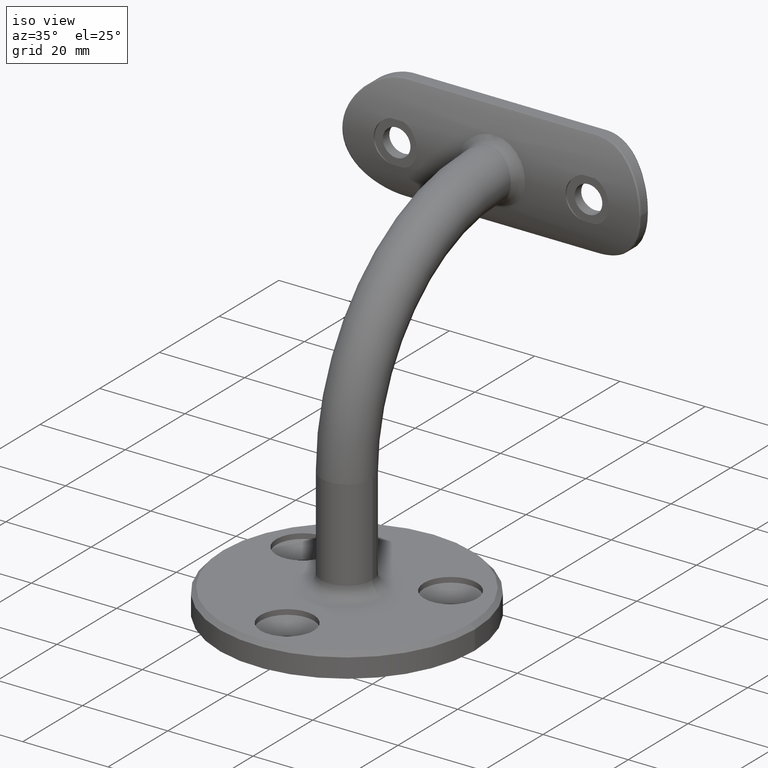
[diagram: clean part render]
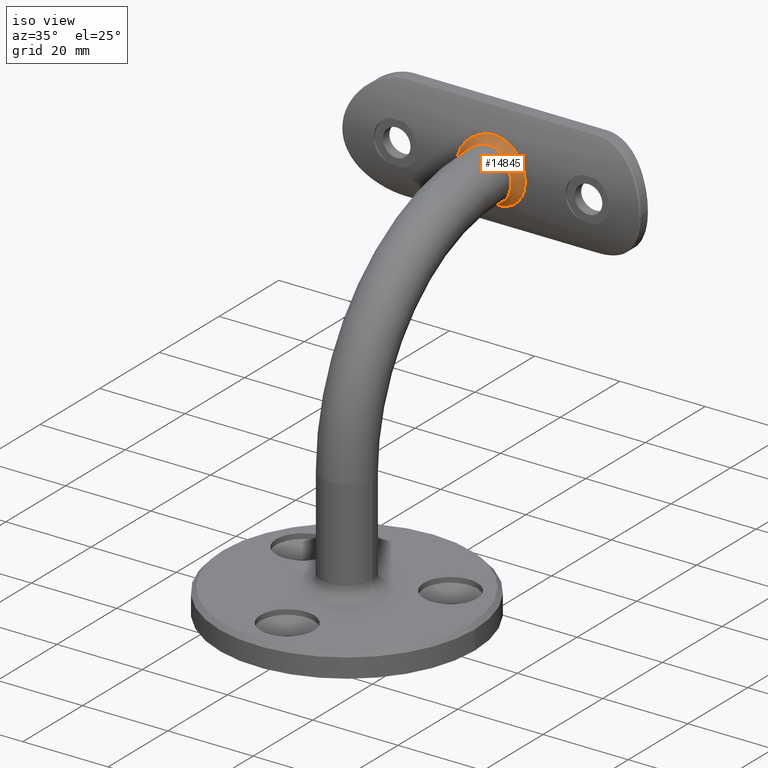
[diagram: same view with one face highlighted and labeled with its STEP entity id]
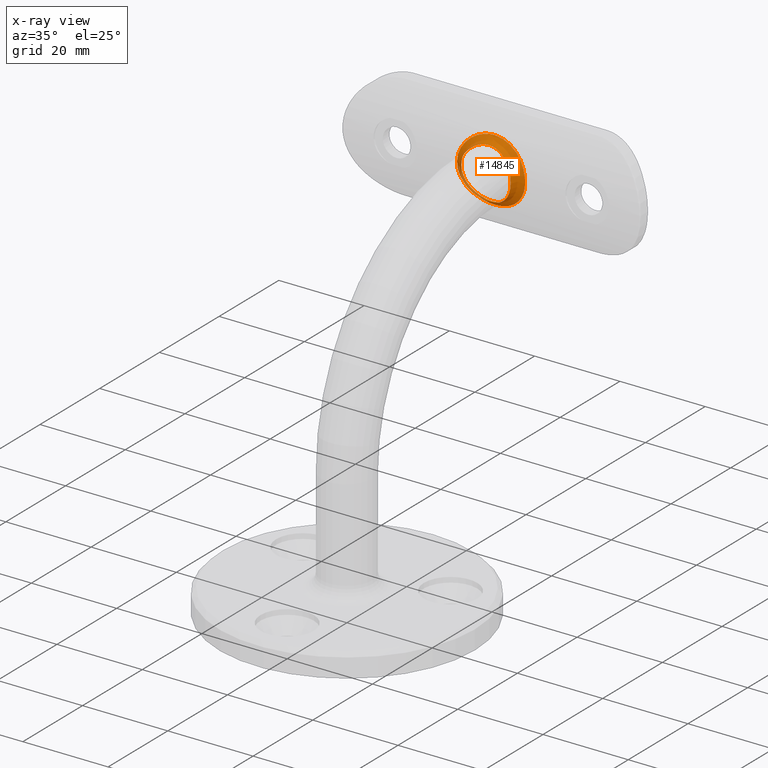
[diagram: x-ray of the same camera — body ghosted, the highlighted face saturated]
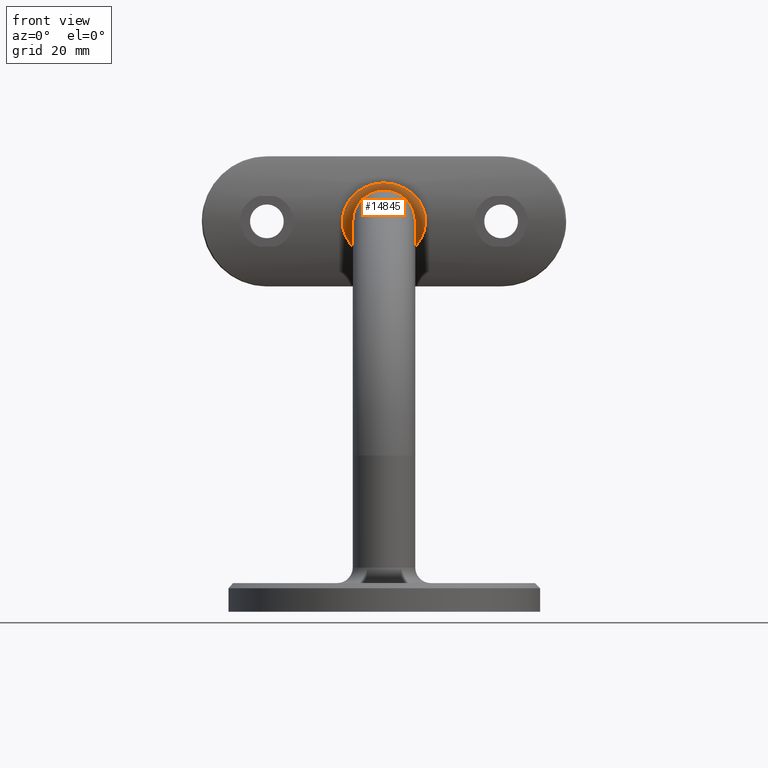
[diagram: same view with one face highlighted and labeled with its STEP entity id]
A machine part, iso view. The second image highlights one B-rep face of the part: STEP entity #14845.
The next image is the same camera in x-ray: the body ghosted, the highlighted face saturated — about 7% of this face is hidden behind the body in this view.
A second angle (front view) of the same face is appended — the face is thin or edge-on in the first view.
In plain terms, the highlighted face is a freeform B-spline surface patch.
Its self-contained STEP definition (entity closure, byte-faithful):
#22 = CARTESIAN_POINT ( 'NONE',  ( -2.789063963809405688, 48.86066968553032552, 80.33243708874761069 ) ) ;
#82 = CARTESIAN_POINT ( 'NONE',  ( -3.448318950580279818, 47.14200540014157070, 79.91400558096930240 ) ) ;
#92 = CARTESIAN_POINT ( 'NONE',  ( 1.573708688834506653, 47.48266723306192461, 69.19655900937227955 ) ) ;
#127 = CARTESIAN_POINT ( 'NONE',  ( -1.404986051376377443, 48.97931432727733636, 80.83787863610950808 ) ) ;
#183 = CARTESIAN_POINT ( 'NONE',  ( -6.003238947851689211, 48.29928980566356955, 74.70707263832788669 ) ) ;
#197 = CARTESIAN_POINT ( 'NONE',  ( 5.689857243214267335, 46.42545414445829977, 73.05563850057957609 ) ) ;
#248 = CARTESIAN_POINT ( 'NONE',  ( -5.857608621810721949, 48.33113033442135276, 73.64522517141972457 ) ) ;
#264 = CARTESIAN_POINT ( 'NONE',  ( 3.661040483986010674, 47.09106678673158086, 79.76945707445469225 ) ) ;
#279 = CARTESIAN_POINT ( 'NONE',  ( 2.492586276368585541, 49.35371306450804951, 82.01868474809954535 ) ) ;
#309 = CARTESIAN_POINT ( 'NONE',  ( -5.659733139078728215, 46.43663374126335697, 77.00158111292725494 ) ) ;
#321 = CARTESIAN_POINT ( 'NONE',  ( 5.794227871222095594, 46.38353155175246201, 76.57030669595384609 ) ) ;
#333 = CARTESIAN_POINT ( 'NONE',  ( -3.893706558449051336, 49.18741166671816956, 68.54682432360860389 ) ) ;
#363 = CARTESIAN_POINT ( 'NONE',  ( -7.546310852404073621, 48.42608287344708629, 77.46269181983331009 ) ) ;
#380 = CARTESIAN_POINT ( 'NONE',  ( 5.191637306238613192, 46.61265038448122056, 71.98581450110339119 ) ) ;
#398 = CARTESIAN_POINT ( 'NONE',  ( 6.413550028340067932, 48.71126197688390391, 70.58071852198609974 ) ) ;
#428 = CARTESIAN_POINT ( 'NONE',  ( -6.552055246393842403, 48.67869303060527386, 70.75741222886871640 ) ) ;
#444 = CARTESIAN_POINT ( 'NONE',  ( 5.678527901045227644, 46.42927580838397716, 76.94762948736543251 ) ) ;
#464 = CARTESIAN_POINT ( 'NONE',  ( 7.235541675167675990, 48.50857720736153311, 78.15891535792472666 ) ) ;
#491 = CARTESIAN_POINT ( 'NONE',  ( 0.3294071263464187216, 47.56397769533015918, 69.00576837163465882 ) ) ;
#518 = CARTESIAN_POINT ( 'NONE',  ( 6.253408285771337560, 48.74817167552411235, 70.38948027749694347 ) ) ;
#541 = CARTESIAN_POINT ( 'NONE',  ( 2.955320434104263150, 47.25438023384255359, 69.77458862647021931 ) ) ;
#600 = CARTESIAN_POINT ( 'NONE',  ( -1.399630106084424064, 49.43326560871042830, 67.72754479334609812 ) ) ;
#629 = CARTESIAN_POINT ( 'NONE',  ( -7.541892706895292342, 48.42728422773119235, 77.47500010425014239 ) ) ;
#657 = CARTESIAN_POINT ( 'NONE',  ( 3.143215169841599987, 48.81498524573601827, 69.88045222800882073 ) ) ;
#692 = CARTESIAN_POINT ( 'NONE',  ( -5.360454491231661400, 48.93731701300155379, 80.48510922264213718 ) ) ;
#757 = CARTESIAN_POINT ( 'NONE',  ( 5.829840767859813866, 48.33717207144672301, 73.52905550108560817 ) ) ;
#810 = CARTESIAN_POINT ( 'NONE',  ( 5.733425775026952387, 48.35818101421077841, 73.18273381067155015 ) ) ;
#875 = CARTESIAN_POINT ( 'NONE',  ( 6.003038123793205116, 48.29933383852904427, 75.29714061239542389 ) ) ;
#930 = CARTESIAN_POINT ( 'NONE',  ( 5.578655151910920651, 48.39113110858912847, 77.22695894641321956 ) ) ;
#986 = CARTESIAN_POINT ( 'NONE',  ( 7.250718796813253597, 48.50461604002735072, 71.87123069069495784 ) ) ;
#1032 = CARTESIAN_POINT ( 'NONE',  ( -5.202203636006318632, 46.61010619932397248, 78.01515954375678064 ) ) ;
#1103 = CARTESIAN_POINT ( 'NONE',  ( -3.662831439949787438, 47.08779718372629475, 79.75621412619868522 ) ) ;
#1120 = CARTESIAN_POINT ( 'NONE',  ( 2.662647846380269190, 49.33744256521493554, 81.96558183420624744 ) ) ;
#1169 = CARTESIAN_POINT ( 'NONE',  ( 1.430828265523909737, 47.49404040511088709, 80.83019572179071588 ) ) ;
#1209 = CARTESIAN_POINT ( 'NONE',  ( 2.004891491025046157, 49.39462564044466575, 82.15050086725196365 ) ) ;
#1249 = CARTESIAN_POINT ( 'NONE',  ( -1.876617077243558418, 47.44101670052194919, 80.70240605927043021 ) ) ;
#1310 = CARTESIAN_POINT ( 'NONE',  ( -4.111392016248186287, 48.67145551136837156, 79.38234749384658073 ) ) ;
#1355 = CARTESIAN_POINT ( 'NONE',  ( -3.481154755467136930, 49.24714102011982675, 81.66422870511182452 ) ) ;
#1366 = CARTESIAN_POINT ( 'NONE',  ( -5.804623190053309401, 46.37946402623100539, 73.43099308841665618 ) ) ;
#1404 = CARTESIAN_POINT ( 'NONE',  ( -5.303351652216448109, 48.44919879917863881, 77.84430998513131783 ) ) ;
#1465 = CARTESIAN_POINT ( 'NONE',  ( -2.064478623677075131, 47.41434072976910130, 80.63706554896462819 ) ) ;
#1524 = CARTESIAN_POINT ( 'NONE',  ( -5.712612906942758251, 46.41647392353475254, 73.12313780595761159 ) ) ;
#1534 = CARTESIAN_POINT ( 'NONE',  ( 5.960872738792049041, 46.31625785074412249, 75.79133236480900848 ) ) ;
#1575 = CARTESIAN_POINT ( 'NONE',  ( -4.212015781605938258, 48.65532334590222519, 70.70088932058044406 ) ) ;
#1603 = CARTESIAN_POINT ( 'NONE',  ( 5.920137178970811931, 48.82387823663273707, 79.98830292255588859 ) ) ;
#1629 = CARTESIAN_POINT ( 'NONE',  ( -7.993539213735209259, 48.30184140623610034, 75.56868241045111745 ) ) ;
#1644 = CARTESIAN_POINT ( 'NONE',  ( 1.562862168693655018, 47.47977466978149153, 80.79623961626911921 ) ) ;
#1664 = CARTESIAN_POINT ( 'NONE',  ( 7.234816057347424056, 48.50876908091706241, 71.83950283912820112 ) ) ;
#1694 = CARTESIAN_POINT ( 'NONE',  ( -7.147251892828003328, 48.53191752073604448, 78.35109416969065421 ) ) ;
#1724 = CARTESIAN_POINT ( 'NONE',  ( 0.5049037058908990572, 49.46511407879488331, 67.62873802963035530 ) ) ;
#1748 = CARTESIAN_POINT ( 'NONE',  ( -4.554014696410833452, 46.82965772627687784, 71.08856614944032515 ) ) ;
#1761 = CARTESIAN_POINT ( 'NONE',  ( 5.191249322299214874, 46.61279035302121798, 78.01485094786625041 ) ) ;
#1775 = CARTESIAN_POINT ( 'NONE',  ( -1.264326314952863184, 49.43993506437081464, 67.70674083970688173 ) ) ;
#1804 = CARTESIAN_POINT ( 'NONE',  ( 0.9226678455739397711, 47.53713761406542915, 69.06808014584007083 ) ) ;
#1839 = CARTESIAN_POINT ( 'NONE',  ( -7.887375458517925431, 48.33194620819256215, 73.74045058441721778 ) ) ;
#1862 = CARTESIAN_POINT ( 'NONE',  ( 3.316568499091529176, 48.79184402733476134, 69.99083395567588184 ) ) ;
#1893 = CARTESIAN_POINT ( 'NONE',  ( 8.000029726563285593, 48.29999152708084154, 74.49567259410061126 ) ) ;
#1920 = CARTESIAN_POINT ( 'NONE',  ( 1.230223794047520025, 49.44160575208374553, 67.70152460700533936 ) ) ;
#1951 = CARTESIAN_POINT ( 'NONE',  ( -1.014455774548104428, 49.45402033559916788, 82.33750426053407523 ) ) ;
#2076 = CARTESIAN_POINT ( 'NONE',  ( 7.602137574895356131, 48.41092874955641889, 77.31186669423418323 ) ) ;
#2132 = CARTESIAN_POINT ( 'NONE',  ( 4.803719037192573538, 46.74893532457124223, 78.61646155412778114 ) ) ;
#2181 = CARTESIAN_POINT ( 'NONE',  ( 5.976257403470110141, 48.30522469195089741, 75.64686929168232155 ) ) ;
#2216 = CARTESIAN_POINT ( 'NONE',  ( 4.662849707761884233, 48.57527363195731596, 71.19294125810870355 ) ) ;
#2238 = CARTESIAN_POINT ( 'NONE',  ( 6.882467184949494943, 48.59840550607278686, 71.22900626875930641 ) ) ;
#2301 = CARTESIAN_POINT ( 'NONE',  ( 8.005099778520300191, 48.29854649389471888, 75.40742894134464791 ) ) ;
#2347 = CARTESIAN_POINT ( 'NONE',  ( -5.678965903280795757, 46.42910466290889815, 76.94641473394474929 ) ) ;
#2464 = CARTESIAN_POINT ( 'NONE',  ( 3.447631423960157981, 49.25125766218085488, 81.67822738532588289 ) ) ;
#2577 = CARTESIAN_POINT ( 'NONE',  ( -5.689768486316610030, 46.42550116982381070, 73.05482450017802876 ) ) ;
#2583 = CARTESIAN_POINT ( 'NONE',  ( 5.358390393309221622, 48.93772702701404143, 80.48686748664709967 ) ) ;
#2613 = CARTESIAN_POINT ( 'NONE',  ( -5.218028987600938251, 48.96503020266586503, 80.60092725892765486 ) ) ;
#2660 = CARTESIAN_POINT ( 'NONE',  ( -0.9685953423730225831, 49.45606407982656805, 82.34385638540288710 ) ) ;
#2675 = CARTESIAN_POINT ( 'NONE',  ( -4.377589500151104041, 46.88506118582861859, 70.89214245609434784 ) ) ;
#2718 = CARTESIAN_POINT ( 'NONE',  ( -2.610866066467182112, 47.32639968331499603, 80.41642856010710716 ) ) ;
#2739 = CARTESIAN_POINT ( 'NONE',  ( -3.666215980010969044, 47.08973475263233155, 70.23445243380602676 ) ) ;
#2789 = CARTESIAN_POINT ( 'NONE',  ( -4.509772543241485465, 46.84372292942719440, 71.03766570708145878 ) ) ;
#2826 = CARTESIAN_POINT ( 'NONE',  ( -7.763664554020002662, 48.36661335457348088, 73.15431309610644917 ) ) ;
#2841 = CARTESIAN_POINT ( 'NONE',  ( 5.999831674199244347, 46.30006932336146264, 75.39840541765443049 ) ) ;
#2888 = CARTESIAN_POINT ( 'NONE',  ( -5.822748415305349035, 46.37218769357406956, 73.49989673190266615 ) ) ;
#2958 = CARTESIAN_POINT ( 'NONE',  ( -5.357843785533630943, 48.43789844086165886, 72.26104577865481815 ) ) ;
#2973 = CARTESIAN_POINT ( 'NONE',  ( 1.372191583780754343, 47.49996554857472120, 80.84428652464974618 ) ) ;
#2985 = CARTESIAN_POINT ( 'NONE',  ( 7.944435010836784272, 48.31599000878550498, 76.00564946320372428 ) ) ;
#3009 = CARTESIAN_POINT ( 'NONE',  ( -5.066155107711188599, 48.49661903426151355, 71.76896349349073034 ) ) ;
#3044 = CARTESIAN_POINT ( 'NONE',  ( -3.206616304300897280, 49.27791977747214958, 68.23269193001435440 ) ) ;
#3055 = B_SPLINE_CURVE_WITH_KNOTS ( 'NONE', 3,
 ( #8220, #6487, #14561, #15856, #1209, #279, #9105, #2464, #11844, #6538, #9583, #10591, #2583, #1603, #10944, #5729, #15160, #16440, #464, #16491, #16382, #12312, #16610, #2985, #13906, #1893, #8457, #4351, #5849, #1664, #13848, #12544, #9766, #398, #518, #5673, #4292, #5787, #13669, #10996, #15269, #7178, #9705, #5608, #12379, #1724, #15027, #11133, #15212, #1775, #11060, #8404, #3044, #8276, #333, #6947, #9658, #12432, #3106, #12481, #4480, #7134, #16553, #9827, #1839, #11185, #3172, #9984, #4687, #11410, #3217, #16658, #629, #12610, #14089, #15441, #8578, #12652, #692, #11369, #8680, #14136, #15398, #9932, #4646, #7292, #6009, #14024, #1951, #4589, #4743 ),
 .UNSPECIFIED., .T., .F.,
 ( 4, 2, 2, 2, 2, 2, 2, 2, 2, 2, 2, 2, 2, 2, 2, 2, 2, 2, 2, 2, 2, 2, 2, 1, 2, 2, 2, 2, 2, 2, 2, 2, 2, 2, 2, 2, 2, 2, 2, 2, 2, 2, 2, 2, 2, 4 ),
 ( 0.000000000000000000, 0.001532985848643303797, 0.002299478772964956130, 0.003065971697286608896, 0.004598957545929926137, 0.005365450470251587577, 0.006131943394573247282, 0.007664929243216542405, 0.008431422167538189100, 0.009197915091859833192, 0.009964408016181480754, 0.01073090094050312658, 0.01226388678914641997, 0.01379687263778971162, 0.01532985848643300501, 0.01609635141075466819, 0.01686284433507633657, 0.01762933725939800148, 0.01839583018371966638, 0.01992881603236302396, 0.02146180188100638153, 0.02299478772964974257, 0.02376128065397141789, 0.02452777357829309321, 0.02529426650261476506, 0.02606075942693644037, 0.02759374527557978407, 0.02836023819990145245, 0.02912673112422311736, 0.03065971697286644024, 0.03219270282150975965, 0.03372568867015308253, 0.03525867451879639847, 0.03602516744311803909, 0.03679166036743967971, 0.03832464621608291933, 0.03909113914040455995, 0.03985763206472620057, 0.04139061791336948876, 0.04292360376201276306, 0.04369009668633441756, 0.04445658961065607206, 0.04598957545929938107, 0.04675606838362102863, 0.04752256130794268313, 0.04905554715658599213 ),
 .UNSPECIFIED. ) ;
#3073 = CARTESIAN_POINT ( 'NONE',  ( -5.349739821757689029, 48.94112339208970752, 69.49014342083955853 ) ) ;
#3090 = CARTESIAN_POINT ( 'NONE',  ( 2.673032975528253807, 47.31463639890133521, 80.38608203250319661 ) ) ;
#3106 = CARTESIAN_POINT ( 'NONE',  ( -5.917228799807676687, 48.82450252021214965, 70.00880740269417402 ) ) ;
#3135 = CARTESIAN_POINT ( 'NONE',  ( 0.9944294194697221867, 48.99994666010680078, 69.07876291753495934 ) ) ;
#3172 = CARTESIAN_POINT ( 'NONE',  ( -7.986059134633191725, 48.30398331540877166, 74.49555929185839886 ) ) ;
#3192 = CARTESIAN_POINT ( 'NONE',  ( 2.006250711706532019, 49.39840193938054114, 67.83717003518184185 ) ) ;
#3217 = CARTESIAN_POINT ( 'NONE',  ( -7.776710598273472996, 48.36288848400393192, 76.75022033833121782 ) ) ;
#3243 = CARTESIAN_POINT ( 'NONE',  ( 0.7244695727891060644, 47.54896011054053417, 69.04059854452765421 ) ) ;
#3313 = CARTESIAN_POINT ( 'NONE',  ( 8.131516293641283255E-17, 47.56648624333101338, 81.00000000000002842 ) ) ;
#3403 = CARTESIAN_POINT ( 'NONE',  ( 6.746052318623858568, 48.63206402619628932, 71.02475159993541354 ) ) ;
#3446 = CARTESIAN_POINT ( 'NONE',  ( 4.739855604158386804, 48.56077717311001152, 78.71020763474281523 ) ) ;
#3482 = FACE_OUTER_BOUND ( 'NONE', #5025, .T. ) ;
#3514 = CARTESIAN_POINT ( 'NONE',  ( 5.703338130359872693, 48.36450511491734972, 76.88224027906839808 ) ) ;
#3586 = CARTESIAN_POINT ( 'NONE',  ( 5.457740821099509532, 48.41666648476439150, 72.48922003856829122 ) ) ;
#3628 = CARTESIAN_POINT ( 'NONE',  ( -3.018063237327953452, 47.24359817505344239, 80.20038244874317002 ) ) ;
#3645 = CARTESIAN_POINT ( 'NONE',  ( 7.750267524181043477, 48.37026222655163110, 76.84614089908615142 ) ) ;
#3700 = CARTESIAN_POINT ( 'NONE',  ( 2.338540766786270098, 48.90627839002846855, 80.53188459092048390 ) ) ;
#3812 = CARTESIAN_POINT ( 'NONE',  ( -1.951528592198453982, 47.43406806718528657, 80.68729820127103380 ) ) ;
#3874 = CARTESIAN_POINT ( 'NONE',  ( 0.9235913857328084120, 49.00538969407254086, 80.94365908402309628 ) ) ;
#3936 = CARTESIAN_POINT ( 'NONE',  ( 1.620813869238536320, 47.47313212387970083, 80.78030065469968690 ) ) ;
#3968 = CARTESIAN_POINT ( 'NONE',  ( -4.660326409242260048, 48.57571282272922986, 78.80967801465995137 ) ) ;
#3987 = CARTESIAN_POINT ( 'NONE',  ( -0.3953804289281102058, 47.56225214219230679, 69.00975155491370572 ) ) ;
#4082 = CARTESIAN_POINT ( 'NONE',  ( -2.956634754945396626, 47.25675206547504104, 80.23562113457062139 ) ) ;
#4099 = CARTESIAN_POINT ( 'NONE',  ( 3.183525722821297421, 47.20434474823751714, 69.91051639969734310 ) ) ;
#4209 = CARTESIAN_POINT ( 'NONE',  ( -7.222228887733916025, 48.51249097021755574, 71.78775350725601356 ) ) ;
#4224 = CARTESIAN_POINT ( 'NONE',  ( 5.089092106736421428, 46.64940930522494256, 78.18424357921560386 ) ) ;
#4265 = CARTESIAN_POINT ( 'NONE',  ( -3.917774465793392835, 48.70456326025087179, 70.43022845920556563 ) ) ;
#4292 = CARTESIAN_POINT ( 'NONE',  ( 5.732694712688530814, 48.86187535583084696, 69.84526364335704329 ) ) ;
#4318 = CARTESIAN_POINT ( 'NONE',  ( -5.962634950050251348, 48.30821442834564294, 75.76389617819241096 ) ) ;
#4351 = CARTESIAN_POINT ( 'NONE',  ( 7.719970780884385597, 48.37874877267699958, 73.00002937585765039 ) ) ;
#4382 = CARTESIAN_POINT ( 'NONE',  ( -5.768240459579955903, 48.35064346545460268, 73.29755802263080966 ) ) ;
#4451 = CARTESIAN_POINT ( 'NONE',  ( -5.995154410024054137, 46.30199549868247288, 75.46220317250887888 ) ) ;
#4480 = CARTESIAN_POINT ( 'NONE',  ( -6.865861051941553939, 48.60378685861640946, 71.17991826423208579 ) ) ;
#4499 = CARTESIAN_POINT ( 'NONE',  ( 2.426236778265392857, 47.35614522699428619, 69.50892896951320665 ) ) ;
#4533 = VERTEX_POINT ( 'NONE', #11886 ) ;
#4561 = CARTESIAN_POINT ( 'NONE',  ( -1.130909268044956395, 48.99386025680512091, 69.10317182166265582 ) ) ;
#4589 = CARTESIAN_POINT ( 'NONE',  ( -0.5110023239987000476, 49.46868807782283284, 82.38223938223939058 ) ) ;
#4614 = CARTESIAN_POINT ( 'NONE',  ( -0.3494253250416124446, 49.46769454613477990, 67.62082007415840224 ) ) ;
#4646 = CARTESIAN_POINT ( 'NONE',  ( -2.738371168082726737, 49.32969325585052900, 81.94027301035458777 ) ) ;
#4687 = CARTESIAN_POINT ( 'NONE',  ( -7.999662637619349148, 48.30009615789305855, 75.51019060651206871 ) ) ;
#4709 = CARTESIAN_POINT ( 'NONE',  ( 3.916625167319025103, 47.02168113933499427, 70.43771330755362214 ) ) ;
#4732 = EDGE_CURVE ( 'NONE', #9309, #9309, #3055, .T. ) ;
#4743 = CARTESIAN_POINT ( 'NONE',  ( 2.168404344971008868E-16, 49.46868807782283994, 82.38223938223939058 ) ) ;
#4764 = CARTESIAN_POINT ( 'NONE',  ( 5.996433686697518084, 48.30078197691930342, 74.58952148129939985 ) ) ;
#4826 = CARTESIAN_POINT ( 'NONE',  ( 5.757205042724452326, 48.35288300492022273, 76.70852290553185071 ) ) ;
#4878 = CARTESIAN_POINT ( 'NONE',  ( 7.516141221872289613, 48.43427586460045120, 77.53985808962278270 ) ) ;
#4931 = CARTESIAN_POINT ( 'NONE',  ( 6.003824833638963909, 46.29842486149387071, 75.33114256006899723 ) ) ;
#4989 = CARTESIAN_POINT ( 'NONE',  ( 7.959249633863207940, 48.31174288258623051, 75.88932516433732189 ) ) ;
#5025 = EDGE_LOOP ( 'NONE', ( #6469 ) ) ;
#5108 = CARTESIAN_POINT ( 'NONE',  ( 2.141236723629354355, 48.92475870346817146, 80.61095363706654382 ) ) ;
#5147 = CARTESIAN_POINT ( 'NONE',  ( -5.794907891660560750, 46.38326064535087312, 76.56787326474854183 ) ) ;
#5164 = CARTESIAN_POINT ( 'NONE',  ( 1.996985884836016245, 47.42425784283313561, 80.66135678377570173 ) ) ;
#5225 = CARTESIAN_POINT ( 'NONE',  ( 0.07003417619850814402, 49.01968791021786842, 80.99959342769548698 ) ) ;
#5262 = CARTESIAN_POINT ( 'NONE',  ( -0.7848707967238458538, 49.01042003976640160, 80.96354039448208084 ) ) ;
#5314 = CARTESIAN_POINT ( 'NONE',  ( 0.7936408666540838430, 47.54518727423705116, 69.04937606945864559 ) ) ;
#5354 = CARTESIAN_POINT ( 'NONE',  ( -1.496963799689815078, 47.48704201855105822, 80.81362416241577762 ) ) ;
#5371 = CARTESIAN_POINT ( 'NONE',  ( -5.921172292643489321, 46.33231837250868068, 74.01076951744990140 ) ) ;
#5415 = CARTESIAN_POINT ( 'NONE',  ( -2.752638164813987043, 49.32829125276231252, 81.93569454904174165 ) ) ;
#5430 = CARTESIAN_POINT ( 'NONE',  ( -0.9889083385013852645, 47.53258695802780665, 69.07871569301013892 ) ) ;
#5473 = CARTESIAN_POINT ( 'NONE',  ( -5.952233857793738814, 46.31980874268868575, 75.85261073830181999 ) ) ;
#5517 = CARTESIAN_POINT ( 'NONE',  ( -4.730847539455631079, 48.56148276866739621, 71.29462643268236377 ) ) ;
#5532 = CARTESIAN_POINT ( 'NONE',  ( 4.761767326285071711, 46.76299597993806145, 78.67132598672668564 ) ) ;
#5579 = CARTESIAN_POINT ( 'NONE',  ( -5.821431128897583740, 48.33898719550329304, 76.47275972372152353 ) ) ;
#5608 = CARTESIAN_POINT ( 'NONE',  ( 1.265160980206146313, 49.43988458579631384, 67.70689984911058446 ) ) ;
#5640 = CARTESIAN_POINT ( 'NONE',  ( -2.904831626029471092, 48.84694237187473931, 69.72966644294059790 ) ) ;
#5673 = CARTESIAN_POINT ( 'NONE',  ( 5.913465852589942173, 48.82338086499154173, 70.02216696854593181 ) ) ;
#5701 = CARTESIAN_POINT ( 'NONE',  ( -3.071007963791001938, 47.23205585502034864, 69.83074555631648650 ) ) ;
#5729 = CARTESIAN_POINT ( 'NONE',  ( 6.713650838816632493, 48.63996812479192755, 79.02197985315331152 ) ) ;
#5754 = CARTESIAN_POINT ( 'NONE',  ( 0.4392095018154421604, 49.46637324014670156, 67.62485786760996120 ) ) ;
#5787 = CARTESIAN_POINT ( 'NONE',  ( 5.167715311973065440, 48.97635431874731893, 69.34405122683060085 ) ) ;
#5813 = CARTESIAN_POINT ( 'NONE',  ( -2.003241505696093494, 47.42666293728888860, 69.33079323428989937 ) ) ;
#5849 = CARTESIAN_POINT ( 'NONE',  ( 7.556728273314416100, 48.42391955319666863, 72.52600370899850191 ) ) ;
#5880 = CARTESIAN_POINT ( 'NONE',  ( -0.9185336585832792888, 49.00302948556137039, 69.06653343614983953 ) ) ;
#5898 = CARTESIAN_POINT ( 'NONE',  ( 5.970942391641067992, 48.81287392644057377, 70.06313964426438190 ) ) ;
#5928 = CARTESIAN_POINT ( 'NONE',  ( 3.124032551410834468, 47.21771503654942137, 69.87375405001334627 ) ) ;
#6009 = CARTESIAN_POINT ( 'NONE',  ( -2.006054641065600386, 49.39454718035451464, 82.15025392712695407 ) ) ;
#6086 = CARTESIAN_POINT ( 'NONE',  ( 5.849121145151304546, 48.33296971287983723, 76.35731115223178733 ) ) ;
#6136 = CARTESIAN_POINT ( 'NONE',  ( 6.079410838220232982, 48.78894404745999935, 79.82238658769182393 ) ) ;
#6198 = CARTESIAN_POINT ( 'NONE',  ( 5.126794694870620894, 46.63600280249596608, 78.12323611768934484 ) ) ;
#6236 = ORIENTED_EDGE ( 'NONE', *, *, #10506, .F. ) ;
#6261 = CARTESIAN_POINT ( 'NONE',  ( 6.306252062411420667, 48.73708684457852058, 70.43244815122419311 ) ) ;
#6300 = CARTESIAN_POINT ( 'NONE',  ( -3.504807153964103250, 47.12805700417275290, 79.87385859899002583 ) ) ;
#6311 = CARTESIAN_POINT ( 'NONE',  ( 5.995508247205544983, 46.30184979586144323, 74.54234414042944934 ) ) ;
#6348 = CARTESIAN_POINT ( 'NONE',  ( -4.517135940745253819, 46.84337585454939301, 78.96801568092800494 ) ) ;
#6413 = CARTESIAN_POINT ( 'NONE',  ( -5.950663268602949252, 46.32025540298095478, 74.20663248250387767 ) ) ;
#6469 = ORIENTED_EDGE ( 'NONE', *, *, #4732, .F. ) ;
#6487 = CARTESIAN_POINT ( 'NONE',  ( 0.5110023239986987154, 49.46868807782283994, 82.38223938223939058 ) ) ;
#6497 = CARTESIAN_POINT ( 'NONE',  ( 2.161085159052467120, 49.38254277086370081, 82.11192718919460276 ) ) ;
#6538 = CARTESIAN_POINT ( 'NONE',  ( 4.544661018875411962, 49.08589883649019470, 81.07995132546558636 ) ) ;
#6572 = CARTESIAN_POINT ( 'NONE',  ( 0.07003417619850814402, 49.01968791021786842, 80.99959342769548698 ) ) ;
#6654 = CARTESIAN_POINT ( 'NONE',  ( 0.9920396237047801602, 47.53234853611866129, 69.07927546855519552 ) ) ;
#6698 = CARTESIAN_POINT ( 'NONE',  ( -1.995951732989355021, 49.39537854238381698, 82.15292754105185224 ) ) ;
#6749 = CARTESIAN_POINT ( 'NONE',  ( -3.807696949813192511, 48.72022750733750485, 79.64795079256236932 ) ) ;
#6804 = CARTESIAN_POINT ( 'NONE',  ( -5.360438919477362063, 46.55132484417627836, 77.72364034501143237 ) ) ;
#6816 = CARTESIAN_POINT ( 'NONE',  ( 3.966407819370535659, 47.00771009835172975, 79.51864506905400276 ) ) ;
#6859 = CARTESIAN_POINT ( 'NONE',  ( -4.799422958036446474, 46.74936155021772777, 71.39390739271679820 ) ) ;
#6919 = CARTESIAN_POINT ( 'NONE',  ( -5.664685998229985309, 48.37280062269897485, 76.99646159421439506 ) ) ;
#6935 = CARTESIAN_POINT ( 'NONE',  ( 4.165376735146709031, 49.14684901081141533, 68.69280421098940792 ) ) ;
#6947 = CARTESIAN_POINT ( 'NONE',  ( -4.117909654674756226, 49.15410051832935778, 68.66642382061087346 ) ) ;
#6971 = CARTESIAN_POINT ( 'NONE',  ( -7.705296809180524953, 48.38269745106017439, 77.00002145787094321 ) ) ;
#6988 = CARTESIAN_POINT ( 'NONE',  ( 4.520544209994165286, 46.84235992278370020, 71.03538437066941924 ) ) ;
#7029 = CARTESIAN_POINT ( 'NONE',  ( -7.455090494047975191, 48.45067240539066944, 77.68866675115616260 ) ) ;
#7047 = CARTESIAN_POINT ( 'NONE',  ( 5.460978335205408207, 46.51307495234760125, 77.49318872892563093 ) ) ;
#7102 = CARTESIAN_POINT ( 'NONE',  ( 0.1321009334876624974, 47.56725815217139797, 68.99821723292535580 ) ) ;
#7134 = CARTESIAN_POINT ( 'NONE',  ( -7.125963332576915832, 48.53745626207470565, 71.60760040381461522 ) ) ;
#7156 = CARTESIAN_POINT ( 'NONE',  ( 2.781205028528882739, 48.85922581346788718, 69.67598242018863175 ) ) ;
#7178 = CARTESIAN_POINT ( 'NONE',  ( 2.497879915486838964, 49.35621909509934824, 67.97114789459722317 ) ) ;
#7203 = CARTESIAN_POINT ( 'NONE',  ( -0.2826972799704690065, 49.01906195904235375, 69.00287797880629626 ) ) ;
#7258 = CARTESIAN_POINT ( 'NONE',  ( -2.173797949829308074, 49.38530021036334006, 67.87885740811140067 ) ) ;
#7292 = CARTESIAN_POINT ( 'NONE',  ( -2.495662851121080106, 49.35343568904281142, 82.01778517174523131 ) ) ;
#7406 = CARTESIAN_POINT ( 'NONE',  ( 5.348493859586429089, 48.43937249663243705, 77.73664289861626742 ) ) ;
#7474 = CARTESIAN_POINT ( 'NONE',  ( 4.214276223943974387, 48.65492882432995714, 79.29675728774913068 ) ) ;
#7545 = CARTESIAN_POINT ( 'NONE',  ( 5.961955815094392541, 48.30836294958522359, 74.23166612381592699 ) ) ;
#7597 = CARTESIAN_POINT ( 'NONE',  ( 5.670738180395937356, 46.43298233049328871, 73.00048830153262713 ) ) ;
#7641 = CARTESIAN_POINT ( 'NONE',  ( -4.764983979408073722, 46.76193059162986998, 78.66729292813784014 ) ) ;
#7656 = CARTESIAN_POINT ( 'NONE',  ( 5.198686415410083583, 48.47006988889186374, 71.98725205396841886 ) ) ;
#7688 = CARTESIAN_POINT ( 'NONE',  ( 0.000000000000000000, 49.46868807782281863, 82.38223938223939058 ) ) ;
#7702 = CARTESIAN_POINT ( 'NONE',  ( -6.000085018143836102, 46.29996498609556710, 74.80431649774097025 ) ) ;
#7719 = CARTESIAN_POINT ( 'NONE',  ( 3.710550923996577044, 47.07812496213141884, 79.73116559759149879 ) ) ;
#7763 = CARTESIAN_POINT ( 'NONE',  ( -5.843987735046843213, 46.36354194465138079, 76.37367614742150579 ) ) ;
#7782 = CARTESIAN_POINT ( 'NONE',  ( 3.913619543270325796, 48.70522537713424782, 79.57330451640717683 ) ) ;
#7832 =( BOUNDED_SURFACE ( )  B_SPLINE_SURFACE ( 3, 2, ( 
 ( #9211, #6572, #16047 ),
 ( #17293, #7852, #7973 ),
 ( #9267, #5262, #2660 ),
 ( #13464, #127, #14649 ),
 ( #5354, #9439, #6698 ),
 ( #1249, #16002, #7915 ),
 ( #1465, #8021, #5415 ),
 ( #2718, #22, #1355 ),
 ( #4082, #17347, #14823 ),
 ( #82, #10629, #12171 ),
 ( #9316, #6749, #10743 ),
 ( #13510, #1310, #2613 ),
 ( #10693, #13396, #12001 ),
 ( #16107, #3968, #10795 ),
 ( #14770, #12049, #13340 ),
 ( #9375, #1404, #10915 ),
 ( #6804, #9733, #1694 ),
 ( #15127, #6919, #7029 ),
 ( #309, #16344, #363 ),
 ( #12454, #5579, #6971 ),
 ( #8247, #16460, #9679 ),
 ( #5473, #4318, #8305 ),
 ( #4451, #11029, #1629 ),
 ( #14881, #183, #14944 ),
 ( #10856, #8142, #16232 ),
 ( #2888, #248, #2826 ),
 ( #1524, #4382, #8370 ),
 ( #9487, #12219, #4209 ),
 ( #9622, #2958, #15059 ),
 ( #13743, #3009, #428 ),
 ( #6859, #13569, #12405 ),
 ( #1748, #5517, #11095 ),
 ( #14994, #10965, #12279 ),
 ( #16284, #1575, #3073 ),
 ( #8200, #4265, #9549 ),
 ( #5701, #13633, #12338 ),
 ( #13694, #5640, #16410 ),
 ( #5813, #16684, #8548 ),
 ( #12576, #9958, #7258 ),
 ( #15183, #4561, #600 ),
 ( #15369, #5880, #13811 ),
 ( #12632, #13931, #11211 ),
 ( #15296, #7203, #4614 ),
 ( #7102, #16522, #16634 ),
 ( #491, #9794, #5754 ),
 ( #3243, #9906, #8425 ),
 ( #1804, #3135, #1920 ),
 ( #11275, #15239, #3192 ),
 ( #11158, #12510, #16580 ),
 ( #4499, #13878, #13992 ),
 ( #8602, #7156, #8482 ),
 ( #541, #657, #9860 ),
 ( #5928, #1862, #6935 ),
 ( #16364, #15428, #9076 ),
 ( #4709, #16631, #17089 ),
 ( #13149, #2216, #5898 ),
 ( #16543, #11050, #6261 ),
 ( #12844, #7656, #3403 ),
 ( #16908, #8809, #2238 ),
 ( #8761, #3586, #11673 ),
 ( #10069, #10239, #986 ),
 ( #7597, #810, #14332 ),
 ( #12897, #757, #15683 ),
 ( #17037, #7545, #11612 ),
 ( #6311, #4764, #11559 ),
 ( #4931, #875, #2301 ),
 ( #10171, #2181, #4989 ),
 ( #14387, #10303, #15748 ),
 ( #12962, #6086, #3645 ),
 ( #8699, #4826, #2076 ),
 ( #12787, #3514, #4878 ),
 ( #13032, #930, #14278 ),
 ( #11431, #14153, #8929 ),
 ( #15512, #7406, #10113 ),
 ( #6198, #15624, #16852 ),
 ( #2132, #11499, #16973 ),
 ( #14210, #3446, #6136 ),
 ( #15578, #7474, #8866 ),
 ( #7719, #7782, #17210 ),
 ( #11912, #17147, #14451 ),
 ( #14571, #13207, #13147 ),
 ( #11854, #3700, #16025 ),
 ( #5164, #5108, #1120 ),
 ( #3936, #13267, #6497 ),
 ( #1169, #9241, #15974 ),
 ( #10494, #3874, #15916 ),
 ( #7883, #13314, #10356 ),
 ( #10602, #5225, #9050 ) ),
 .UNSPECIFIED., .T., .F., .F. ) 
 B_SPLINE_SURFACE_WITH_KNOTS ( ( 4, 2, 2, 2, 2, 2, 2, 2, 2, 2, 2, 2, 2, 2, 2, 2, 2, 2, 2, 2, 2, 2, 2, 2, 2, 2, 2, 2, 2, 2, 2, 2, 2, 2, 2, 2, 2, 2, 2, 2, 2, 2, 2, 4 ),
 ( 3, 3 ),
 ( 0.000000000000000000, 0.001573130421738246163, 0.002359695632607369462, 0.003146260843476492326, 0.004719391265214738923, 0.005505956476083861788, 0.006292521686952984653, 0.007865652108691230382, 0.009438782530429477846, 0.01022534774129860158, 0.01101191295216772358, 0.01258504337390596931, 0.01415817379564421503, 0.01573130421738246076, 0.01730443463912070823, 0.01809099984998983196, 0.01887756506085895569, 0.02045069548259720316, 0.02202382590433544715, 0.02359695632607369115, 0.02438352153694281488, 0.02517008674781193861, 0.02595665195868106234, 0.02674321716955018607, 0.02831634759128843007, 0.02910291280215755033, 0.02988947801302667406, 0.03146260843476492153, 0.03303573885650316899, 0.03382230406737229272, 0.03460886927824141646, 0.03618199969997966392, 0.03775513012171791138, 0.03932826054345615885, 0.04011482575432528258, 0.04090139096519440631, 0.04168795617606353004, 0.04247452138693265378, 0.04404765180867089430, 0.04562078223040913483, 0.04719391265214738229, 0.04798047786301650602, 0.04876704307388562976, 0.05034017349562387722 ),
 ( 0.000000000000000000, 1.000000000000000000 ),
 .UNSPECIFIED. ) 
 GEOMETRIC_REPRESENTATION_ITEM ( )  RATIONAL_B_SPLINE_SURFACE ( (
 ( 1.000000000000000000, 0.8089635774912781185, 1.000000000000000000),
 ( 1.000000000000000000, 0.8091009790633745258, 1.000000000000000000),
 ( 1.000000000000000000, 0.8079732745493278800, 1.000000000000000000),
 ( 1.000000000000000000, 0.8045429945187151377, 1.000000000000000000),
 ( 1.000000000000000000, 0.8031090871645401030, 1.000000000000000000),
 ( 1.000000000000000000, 0.7996809406626861350, 1.000000000000000000),
 ( 1.000000000000000000, 0.7976860413069564171, 1.000000000000000000),
 ( 1.000000000000000000, 0.7910660600106668161, 1.000000000000000000),
 ( 1.000000000000000000, 0.7857698707821577644, 1.000000000000000000),
 ( 1.000000000000000000, 0.7768861768917093569, 1.000000000000000000),
 ( 1.000000000000000000, 0.7737521736294310504, 1.000000000000000000),
 ( 1.000000000000000000, 0.7673630192573146491, 1.000000000000000000),
 ( 1.000000000000000000, 0.7641003664200698431, 1.000000000000000000),
 ( 1.000000000000000000, 0.7542403010165934507, 1.000000000000000000),
 ( 1.000000000000000000, 0.7475600202936885097, 1.000000000000000000),
 ( 1.000000000000000000, 0.7347866808900551661, 1.000000000000000000),
 ( 1.000000000000000000, 0.7289010899117437381, 1.000000000000000000),
 ( 1.000000000000000000, 0.7213558001637513373, 1.000000000000000000),
 ( 1.000000000000000000, 0.7190547012331457433, 1.000000000000000000),
 ( 1.000000000000000000, 0.7149743580940758347, 1.000000000000000000),
 ( 1.000000000000000000, 0.7131923987452172264, 1.000000000000000000),
 ( 1.000000000000000000, 0.7088625371164525291, 1.000000000000000000),
 ( 1.000000000000000000, 0.7072831556343243120, 1.000000000000000000),
 ( 1.000000000000000000, 0.7069583638707434003, 1.000000000000000000),
 ( 1.000000000000000000, 0.7082612424831109532, 1.000000000000000000),
 ( 1.000000000000000000, 0.7134561981783509310, 1.000000000000000000),
 ( 1.000000000000000000, 0.7173271488667873896, 1.000000000000000000),
 ( 1.000000000000000000, 0.7271092475097650221, 1.000000000000000000),
 ( 1.000000000000000000, 0.7329021642535124004, 1.000000000000000000),
 ( 1.000000000000000000, 0.7422293937838992939, 1.000000000000000000),
 ( 1.000000000000000000, 0.7454512871194617363, 1.000000000000000000),
 ( 1.000000000000000000, 0.7520272228406074122, 1.000000000000000000),
 ( 1.000000000000000000, 0.7553919450851629414, 1.000000000000000000),
 ( 1.000000000000000000, 0.7653380039403847590, 1.000000000000000000),
 ( 1.000000000000000000, 0.7718308191116336481, 1.000000000000000000),
 ( 1.000000000000000000, 0.7838758826427916215, 1.000000000000000000),
 ( 1.000000000000000000, 0.7894479290051172882, 1.000000000000000000),
 ( 1.000000000000000000, 0.7986236175259986414, 1.000000000000000000),
 ( 1.000000000000000000, 0.8023007766531262686, 1.000000000000000000),
 ( 1.000000000000000000, 0.8061484141569599249, 1.000000000000000000),
 ( 1.000000000000000000, 0.8071498087210866590, 1.000000000000000000),
 ( 1.000000000000000000, 0.8085189850778111698, 1.000000000000000000),
 ( 1.000000000000000000, 0.8088956393147901380, 1.000000000000000000),
 ( 1.000000000000000000, 0.8090314765681614340, 1.000000000000000000),
 ( 1.000000000000000000, 0.8087906683788622653, 1.000000000000000000),
 ( 1.000000000000000000, 0.8076857150984374512, 1.000000000000000000),
 ( 1.000000000000000000, 0.8068152241260457824, 1.000000000000000000),
 ( 1.000000000000000000, 0.8033544782400683371, 1.000000000000000000),
 ( 1.000000000000000000, 0.7999113287888111046, 1.000000000000000000),
 ( 1.000000000000000000, 0.7933053395332968494, 1.000000000000000000),
 ( 1.000000000000000000, 0.7908494024357080043, 1.000000000000000000),
 ( 1.000000000000000000, 0.7855631335970331142, 1.000000000000000000),
 ( 1.000000000000000000, 0.7827478724227487916, 1.000000000000000000),
 ( 1.000000000000000000, 0.7739034070730017589, 1.000000000000000000),
 ( 1.000000000000000000, 0.7674725368793575697, 1.000000000000000000),
 ( 1.000000000000000000, 0.7541812580856057657, 1.000000000000000000),
 ( 1.000000000000000000, 0.7474758006219410778, 1.000000000000000000),
 ( 1.000000000000000000, 0.7380260073970930090, 1.000000000000000000),
 ( 1.000000000000000000, 0.7349701256854354048, 1.000000000000000000),
 ( 1.000000000000000000, 0.7291469301041509921, 1.000000000000000000),
 ( 1.000000000000000000, 0.7263657708151838310, 1.000000000000000000),
 ( 1.000000000000000000, 0.7187588493965397785, 1.000000000000000000),
 ( 1.000000000000000000, 0.7146464838382243778, 1.000000000000000000),
 ( 1.000000000000000000, 0.7088926884259308947, 1.000000000000000000),
 ( 1.000000000000000000, 0.7072702780486693763, 1.000000000000000000),
 ( 1.000000000000000000, 0.7069675605615138858, 1.000000000000000000),
 ( 1.000000000000000000, 0.7082367148963262249, 1.000000000000000000),
 ( 1.000000000000000000, 0.7121507829099973375, 1.000000000000000000),
 ( 1.000000000000000000, 0.7137987074155813794, 1.000000000000000000),
 ( 1.000000000000000000, 0.7176325039667663663, 1.000000000000000000),
 ( 1.000000000000000000, 0.7198233951290521349, 1.000000000000000000),
 ( 1.000000000000000000, 0.7246645843006837007, 1.000000000000000000),
 ( 1.000000000000000000, 0.7273149523284367923, 1.000000000000000000),
 ( 1.000000000000000000, 0.7329893486399294833, 1.000000000000000000),
 ( 1.000000000000000000, 0.7360306883084022367, 1.000000000000000000),
 ( 1.000000000000000000, 0.7454418890666917319, 1.000000000000000000),
 ( 1.000000000000000000, 0.7520737260292389426, 1.000000000000000000),
 ( 1.000000000000000000, 0.7652833489444423876, 1.000000000000000000),
 ( 1.000000000000000000, 0.7719165533833122206, 1.000000000000000000),
 ( 1.000000000000000000, 0.7839460194279915806, 1.000000000000000000),
 ( 1.000000000000000000, 0.7893983492013887382, 1.000000000000000000),
 ( 1.000000000000000000, 0.7963213778124450526, 1.000000000000000000),
 ( 1.000000000000000000, 0.7984277749993030637, 1.000000000000000000),
 ( 1.000000000000000000, 0.8020755844476875618, 1.000000000000000000),
 ( 1.000000000000000000, 0.8036273320244239349, 1.000000000000000000),
 ( 1.000000000000000000, 0.8074282978572419056, 1.000000000000000000),
 ( 1.000000000000000000, 0.8088261759191817113, 1.000000000000000000),
 ( 1.000000000000000000, 0.8089635774912781185, 1.000000000000000000) ) ) 
 REPRESENTATION_ITEM ( '' )  SURFACE ( )  );
#7852 = CARTESIAN_POINT ( 'NONE',  ( -0.3603324005345990844, 49.02095354412640660, 81.00459045552486259 ) ) ;
#7865 = CARTESIAN_POINT ( 'NONE',  ( -3.964997294805738370, 47.00811575686326194, 70.48005197113876363 ) ) ;
#7883 = CARTESIAN_POINT ( 'NONE',  ( 0.4639844481601530513, 47.56446425778903375, 80.99533015839584493 ) ) ;
#7915 = CARTESIAN_POINT ( 'NONE',  ( -2.502156102921808678, 49.35290730262949666, 82.01608776387995192 ) ) ;
#7931 = CARTESIAN_POINT ( 'NONE',  ( 0.0001576816451099605785, 47.57073162812265821, 68.99022291308867239 ) ) ;
#7973 = CARTESIAN_POINT ( 'NONE',  ( -0.4455065278031822285, 49.47027318680709840, 82.38712056266236061 ) ) ;
#8021 = CARTESIAN_POINT ( 'NONE',  ( -2.212698508099147698, 48.91820464306473326, 80.58317951493870623 ) ) ;
#8037 = CARTESIAN_POINT ( 'NONE',  ( 0.3966547821884445213, 47.56222948863060651, 69.00980334448675535 ) ) ;
#8142 = CARTESIAN_POINT ( 'NONE',  ( -5.975706092221578558, 48.30534528400871608, 74.34921734851226915 ) ) ;
#8200 = CARTESIAN_POINT ( 'NONE',  ( -3.714707842734172871, 47.07703232333850707, 70.27208004928820628 ) ) ;
#8209 = CARTESIAN_POINT ( 'NONE',  ( 5.960041371700653734, 46.31659550633561651, 74.20405832257984002 ) ) ;
#8220 = CARTESIAN_POINT ( 'NONE',  ( 2.168404344971008868E-16, 49.46868807782283994, 82.38223938223939058 ) ) ;
#8247 = CARTESIAN_POINT ( 'NONE',  ( -5.829869060114103441, 46.36921777223337671, 76.43235295376446459 ) ) ;
#8260 = CARTESIAN_POINT ( 'NONE',  ( 6.000167247900116685, 46.29993112056153137, 74.60668080040811390 ) ) ;
#8276 = CARTESIAN_POINT ( 'NONE',  ( -3.438188569864543354, 49.24928547129246681, 68.33011239005922732 ) ) ;
#8305 = CARTESIAN_POINT ( 'NONE',  ( -7.936311810823233337, 48.31827910995326647, 76.04902942842402069 ) ) ;
#8322 = CARTESIAN_POINT ( 'NONE',  ( 3.966595084778782976, 47.00770378256240178, 70.48119258252215502 ) ) ;
#8370 = CARTESIAN_POINT ( 'NONE',  ( -7.616817209752758444, 48.40747979792556777, 72.69075899914047056 ) ) ;
#8404 = CARTESIAN_POINT ( 'NONE',  ( -2.500728672340883030, 49.35592437958506196, 67.97212051774229735 ) ) ;
#8425 = CARTESIAN_POINT ( 'NONE',  ( 0.9659594303652571101, 49.45251531430540126, 67.66771198033232793 ) ) ;
#8457 = CARTESIAN_POINT ( 'NONE',  ( 7.942139424938012837, 48.31663771397135321, 73.98171789420835864 ) ) ;
#8482 = CARTESIAN_POINT ( 'NONE',  ( 3.474713018003448894, 49.24464410304605622, 68.34603217308560374 ) ) ;
#8548 = CARTESIAN_POINT ( 'NONE',  ( -2.670988674326817414, 49.33966193870306682, 68.02475975800730623 ) ) ;
#8578 = CARTESIAN_POINT ( 'NONE',  ( -6.259955543001051836, 48.74776309842484778, 79.62284788784137390 ) ) ;
#8602 = CARTESIAN_POINT ( 'NONE',  ( 2.606034763621221995, 47.32369381854508106, 69.59191108600772679 ) ) ;
#8680 = CARTESIAN_POINT ( 'NONE',  ( -4.759443106618351571, 49.04902320912972158, 80.93848631500104318 ) ) ;
#8699 = CARTESIAN_POINT ( 'NONE',  ( 5.701603180978050744, 46.42021148987203816, 76.87899625667340331 ) ) ;
#8761 = CARTESIAN_POINT ( 'NONE',  ( 5.350894574747250054, 46.55440059869251002, 72.27853855957624774 ) ) ;
#8809 = CARTESIAN_POINT ( 'NONE',  ( 5.290478477817291747, 48.45131863959061036, 72.15234299940595974 ) ) ;
#8866 = CARTESIAN_POINT ( 'NONE',  ( 5.352860979407224384, 48.94049239058840328, 80.50710985743268111 ) ) ;
#8929 = CARTESIAN_POINT ( 'NONE',  ( 7.211502295395376905, 48.51487579570900976, 78.20492841888152213 ) ) ;
#9035 = CARTESIAN_POINT ( 'NONE',  ( -5.386401098891274053, 46.54162379961016427, 77.67195837786306356 ) ) ;
#9050 = CARTESIAN_POINT ( 'NONE',  ( 0.08656970149243928270, 49.46854770847706817, 82.38180714447470621 ) ) ;
#9076 = CARTESIAN_POINT ( 'NONE',  ( 4.817496997219231858, 49.04143970310586553, 69.08687544693376026 ) ) ;
#9100 = CARTESIAN_POINT ( 'NONE',  ( -5.999828287115068548, 46.30007071829929544, 75.39913601337849514 ) ) ;
#9105 = CARTESIAN_POINT ( 'NONE',  ( 2.735623816566510769, 49.32998134116485289, 81.94122615385552422 ) ) ;
#9211 = CARTESIAN_POINT ( 'NONE',  ( 0.06492727611932946896, 47.56633412759649104, 80.99964869378331400 ) ) ;
#9241 = CARTESIAN_POINT ( 'NONE',  ( 1.538997670235829673, 48.97104919782096033, 80.80414477125803785 ) ) ;
#9267 = CARTESIAN_POINT ( 'NONE',  ( -0.7264465067672860599, 47.55280584358748541, 80.96880377766980530 ) ) ;
#9309 = VERTEX_POINT ( 'NONE', #7688 ) ;
#9316 = CARTESIAN_POINT ( 'NONE',  ( -3.608386235549066789, 47.10183802991746660, 79.79769638412355448 ) ) ;
#9329 = CARTESIAN_POINT ( 'NONE',  ( -1.948461438975970239, 47.43446537661704099, 69.31175337659138336 ) ) ;
#9375 = CARTESIAN_POINT ( 'NONE',  ( -5.172604851489382760, 46.62083840116534361, 78.06589613792161231 ) ) ;
#9439 = CARTESIAN_POINT ( 'NONE',  ( -1.609777014402082429, 48.96635004594887164, 80.78502390956984414 ) ) ;
#9487 = CARTESIAN_POINT ( 'NONE',  ( -5.416671666172248045, 46.53027264110570371, 72.38920970185627368 ) ) ;
#9503 = CARTESIAN_POINT ( 'NONE',  ( 5.804525329634206088, 46.37950342149885330, 73.43057271469091063 ) ) ;
#9549 = CARTESIAN_POINT ( 'NONE',  ( -4.952943790525499601, 49.01702982683362109, 69.18289385688258619 ) ) ;
#9583 = CARTESIAN_POINT ( 'NONE',  ( 4.754057291717613154, 49.04996914703444588, 80.94217623804526340 ) ) ;
#9622 = CARTESIAN_POINT ( 'NONE',  ( -5.234110078868403626, 46.59846761820006833, 72.04095128161741002 ) ) ;
#9641 = CARTESIAN_POINT ( 'NONE',  ( 1.940295386452066895, 47.43227639795732387, 80.68103737541429155 ) ) ;
#9658 = CARTESIAN_POINT ( 'NONE',  ( -4.765471968832661886, 49.05056257968753641, 69.05153568720416501 ) ) ;
#9679 = CARTESIAN_POINT ( 'NONE',  ( -7.773158746603012759, 48.36387277056419265, 76.76232873071346319 ) ) ;
#9705 = CARTESIAN_POINT ( 'NONE',  ( 2.012632464989731584, 49.39756275314994127, 67.83986665497305069 ) ) ;
#9733 = CARTESIAN_POINT ( 'NONE',  ( -5.467529032173320758, 48.41472295409325710, 77.50893305585086068 ) ) ;
#9751 = CARTESIAN_POINT ( 'NONE',  ( 5.462699822869253374, 46.51242570269194232, 72.51048902043578437 ) ) ;
#9766 = CARTESIAN_POINT ( 'NONE',  ( 6.714025232209269056, 48.63987150313383268, 70.97865595706475972 ) ) ;
#9794 = CARTESIAN_POINT ( 'NONE',  ( 0.3554953728173693150, 49.01808593538145686, 69.00669692935963440 ) ) ;
#9827 = CARTESIAN_POINT ( 'NONE',  ( -7.721252161502310862, 48.37839392280258721, 73.00427705869235240 ) ) ;
#9860 = CARTESIAN_POINT ( 'NONE',  ( 3.940427245630529818, 49.18068291826916294, 68.57079372798122563 ) ) ;
#9906 = CARTESIAN_POINT ( 'NONE',  ( 0.7810836583396877364, 49.00793848395183261, 69.04696320787387265 ) ) ;
#9932 = CARTESIAN_POINT ( 'NONE',  ( -3.447585192337737414, 49.25123123693744276, 81.67812042257834548 ) ) ;
#9958 = CARTESIAN_POINT ( 'NONE',  ( -1.753632428403256505, 48.95899223012550294, 69.24485812039496579 ) ) ;
#9984 = CARTESIAN_POINT ( 'NONE',  ( -8.000166427283927462, 48.29995256348107091, 74.75169160026646864 ) ) ;
#10069 = CARTESIAN_POINT ( 'NONE',  ( 5.438039097772342068, 46.52173872105365859, 72.45705674329404644 ) ) ;
#10113 = CARTESIAN_POINT ( 'NONE',  ( 6.969354619783338478, 48.57668318732785906, 78.63257174890827628 ) ) ;
#10171 = CARTESIAN_POINT ( 'NONE',  ( 5.969437225044765150, 46.31272555065340413, 75.72280926006446578 ) ) ;
#10239 = CARTESIAN_POINT ( 'NONE',  ( 5.533356443524954926, 48.40072734119706155, 72.66191858136912174 ) ) ;
#10303 = CARTESIAN_POINT ( 'NONE',  ( 5.887127808981705179, 48.32468531169840986, 76.17911715301644904 ) ) ;
#10356 = CARTESIAN_POINT ( 'NONE',  ( 0.6186459307880611824, 49.46682223014703794, 82.37649372628706601 ) ) ;
#10403 = CARTESIAN_POINT ( 'NONE',  ( -5.612188185378391481, 46.45519828468339796, 77.13108267429765874 ) ) ;
#10494 = CARTESIAN_POINT ( 'NONE',  ( 0.8552337955944481207, 47.54539175276188701, 80.95167051121856616 ) ) ;
#10506 = EDGE_CURVE ( 'NONE', #4533, #4533, #10607, .T. ) ;
#10591 = CARTESIAN_POINT ( 'NONE',  ( 5.161301396463946922, 48.97582395163508551, 80.64544363286013606 ) ) ;
#10602 = CARTESIAN_POINT ( 'NONE',  ( 0.06492727611932946896, 47.56633412759649104, 80.99964869378331400 ) ) ;
#10607 = B_SPLINE_CURVE_WITH_KNOTS ( 'NONE', 3,
 ( #15849, #13012, #14605, #14496, #3812, #13073, #3628, #6300, #1103, #15730, #13193, #6348, #7641, #1032, #9035, #10403, #2347, #5147, #7763, #15798, #9100, #7702, #17131, #6413, #5371, #1366, #2577, #15961, #11957, #10812, #12011, #2789, #2675, #7865, #2739, #14783, #14838, #9329, #17307, #5430, #12066, #3987, #7931, #8037, #5314, #6654, #92, #14732, #16122, #16062, #12123, #4099, #13476, #8322, #6988, #11043, #16244, #380, #15144, #9751, #197, #9503, #8209, #8260, #2841, #1534, #12231, #321, #444, #14900, #7047, #12296, #1761, #4224, #5532, #11113, #6816, #264, #13653, #3090, #15009, #9641, #1644, #2973, #12356, #13704, #3313 ),
 .UNSPECIFIED., .T., .F.,
 ( 4, 2, 2, 2, 2, 2, 2, 2, 2, 2, 2, 2, 2, 2, 2, 2, 2, 2, 2, 2, 2, 1, 2, 2, 2, 2, 2, 2, 2, 2, 2, 2, 2, 2, 2, 2, 2, 2, 2, 2, 2, 2, 2, 4 ),
 ( 0.000000000000000000, 0.001186031103109008028, 0.002372062206218016056, 0.003558093309327024084, 0.004151108860881527231, 0.004744124412436032112, 0.005930155515545073967, 0.007116186618654114955, 0.007709202170208619836, 0.008302217721763123850, 0.009488248824872131879, 0.01008126437642665671, 0.01067427992798118154, 0.01186031103109027283, 0.01304634213419936413, 0.01363935768575390978, 0.01423237323730845369, 0.01541840434041754498, 0.01660443544352663628, 0.01779046654663572410, 0.01838348209819026802, 0.01897649764974481193, 0.01956951320129935237, 0.02016252875285389629, 0.02134855985596297717, 0.02194157540751751762, 0.02253459095907206153, 0.02372062206218113894, 0.02490665316529021983, 0.02549966871684477415, 0.02609268426839932847, 0.02727871537150847528, 0.02846474647461761862, 0.02965077757772676542, 0.03024379312928133709, 0.03083680868083590876, 0.03142982423239048390, 0.03202283978394505209, 0.03320887088705423706, 0.03439490199016341510, 0.03558093309327260007, 0.03617394864482718908, 0.03676696419638178503, 0.03795299529949096307 ),
 .UNSPECIFIED. ) ;
#10629 = CARTESIAN_POINT ( 'NONE',  ( -3.646547511794414831, 48.74482073057799170, 79.77523293783616509 ) ) ;
#10693 = CARTESIAN_POINT ( 'NONE',  ( -4.059126582774407410, 46.97959198915524581, 79.42281107985049005 ) ) ;
#10743 = CARTESIAN_POINT ( 'NONE',  ( -4.811181647235261316, 49.03992003557358714, 80.90295719823571119 ) ) ;
#10795 = CARTESIAN_POINT ( 'NONE',  ( -5.967560401123830793, 48.81355575025585125, 79.93982842486563811 ) ) ;
#10812 = CARTESIAN_POINT ( 'NONE',  ( -4.873965891762046532, 46.72407691958135700, 71.49540317971444381 ) ) ;
#10856 = CARTESIAN_POINT ( 'NONE',  ( -5.968753603522613638, 46.31300428551139703, 74.27288973096710833 ) ) ;
#10915 = CARTESIAN_POINT ( 'NONE',  ( -6.896806469162405584, 48.59606323466837807, 78.77219653559438939 ) ) ;
#10944 = CARTESIAN_POINT ( 'NONE',  ( 6.259541823229666235, 48.74783762582355706, 79.62296177522878793 ) ) ;
#10965 = CARTESIAN_POINT ( 'NONE',  ( -4.606164985807970957, 48.58473158792444480, 71.14050766031657247 ) ) ;
#10996 = CARTESIAN_POINT ( 'NONE',  ( 3.903408670381709022, 49.18839370400743150, 68.53887480110027752 ) ) ;
#11029 = CARTESIAN_POINT ( 'NONE',  ( -5.996152768859929871, 48.30084357173281262, 75.41455504202785676 ) ) ;
#11043 = CARTESIAN_POINT ( 'NONE',  ( 4.766921020719550484, 46.76125021202411602, 71.33571126233313464 ) ) ;
#11050 = CARTESIAN_POINT ( 'NONE',  ( 4.898517221170180846, 48.52992458815437260, 71.50424477595379358 ) ) ;
#11060 = CARTESIAN_POINT ( 'NONE',  ( -2.015338403274845813, 49.39740309660133732, 67.84036909651499059 ) ) ;
#11095 = CARTESIAN_POINT ( 'NONE',  ( -6.072019595050538676, 48.78875751598211252, 70.18747649806140032 ) ) ;
#11113 = CARTESIAN_POINT ( 'NONE',  ( 4.515350844157318910, 46.84395914514321646, 78.97015755402955506 ) ) ;
#11133 = CARTESIAN_POINT ( 'NONE',  ( -0.5064169288445805606, 49.46507660375819171, 67.62885342236039321 ) ) ;
#11158 = CARTESIAN_POINT ( 'NONE',  ( 1.880424168348265201, 47.44390479789658599, 69.28878744824466196 ) ) ;
#11185 = CARTESIAN_POINT ( 'NONE',  ( -7.929498651123562780, 48.32002764461401512, 73.98955746116138243 ) ) ;
#11211 = CARTESIAN_POINT ( 'NONE',  ( -0.6119102950581699618, 49.46296151520214579, 67.63536410913761188 ) ) ;
#11275 = CARTESIAN_POINT ( 'NONE',  ( 1.504688033703299288, 47.49031841989817337, 69.17832752905476923 ) ) ;
#11369 = CARTESIAN_POINT ( 'NONE',  ( -5.165695840218099022, 48.97498839562833695, 80.64200160064417844 ) ) ;
#11410 = CARTESIAN_POINT ( 'NONE',  ( -7.943616572912726603, 48.31622006805048386, 76.00979344281914507 ) ) ;
#11431 = CARTESIAN_POINT ( 'NONE',  ( 5.408626721452235664, 46.53285703404637985, 77.60484244916571583 ) ) ;
#11499 = CARTESIAN_POINT ( 'NONE',  ( 4.967248980144167270, 48.51652170992237245, 78.39752863481491829 ) ) ;
#11559 = CARTESIAN_POINT ( 'NONE',  ( 7.994010995939044406, 48.30170695439839790, 74.43691248166244634 ) ) ;
#11612 = CARTESIAN_POINT ( 'NONE',  ( 7.935189438336100132, 48.31859546332094624, 73.94497564045714455 ) ) ;
#11673 = CARTESIAN_POINT ( 'NONE',  ( 7.134526099433328383, 48.53475576453251250, 71.65158669628362986 ) ) ;
#11719 = EDGE_LOOP ( 'NONE', ( #6236 ) ) ;
#11844 = CARTESIAN_POINT ( 'NONE',  ( 3.899738990278144524, 49.18892053079066073, 81.46298263417990881 ) ) ;
#11854 = CARTESIAN_POINT ( 'NONE',  ( 2.183735052717867386, 47.39615740329842453, 80.59195252950816268 ) ) ;
#11886 = CARTESIAN_POINT ( 'NONE',  ( 0.000000000000000000, 47.56648624333100628, 81.00000000000001421 ) ) ;
#11912 = CARTESIAN_POINT ( 'NONE',  ( 3.066829445274272814, 47.23296946352843406, 80.17171859491637065 ) ) ;
#11957 = CARTESIAN_POINT ( 'NONE',  ( -5.198721845727937385, 46.61133453797519621, 71.97936087590514376 ) ) ;
#12001 = CARTESIAN_POINT ( 'NONE',  ( -5.412168776997518194, 48.92711384354127802, 80.44170835555232202 ) ) ;
#12011 = CARTESIAN_POINT ( 'NONE',  ( -4.757899355487692716, 46.76323743503047581, 71.33932585939930959 ) ) ;
#12049 = CARTESIAN_POINT ( 'NONE',  ( -4.895883695848056938, 48.53045021877476017, 78.50001191028154324 ) ) ;
#12066 = CARTESIAN_POINT ( 'NONE',  ( -0.7904366536465075033, 47.54535651971025345, 69.04898227073633166 ) ) ;
#12123 = CARTESIAN_POINT ( 'NONE',  ( 3.016651818971334276, 47.24131001687918996, 69.80978221516843973 ) ) ;
#12171 = CARTESIAN_POINT ( 'NONE',  ( -4.597758600676746354, 49.07698567784570542, 81.04606092066659073 ) ) ;
#12219 = CARTESIAN_POINT ( 'NONE',  ( -5.516368986284431841, 48.40443404419320217, 72.60048250890690724 ) ) ;
#12231 = CARTESIAN_POINT ( 'NONE',  ( 5.843404713010633245, 46.36377696760075651, 76.37628995487223449 ) ) ;
#12279 = CARTESIAN_POINT ( 'NONE',  ( -5.896960766305883617, 48.82701058156825269, 70.00557002330528178 ) ) ;
#12296 = CARTESIAN_POINT ( 'NONE',  ( 5.376896254576526424, 46.54472378596621951, 77.66971579604329179 ) ) ;
#12312 = CARTESIAN_POINT ( 'NONE',  ( 7.706834747941722519, 48.38228043005010193, 76.99588600474683631 ) ) ;
#12338 = CARTESIAN_POINT ( 'NONE',  ( -4.094677284841398368, 49.16008243041644477, 68.63988771191803551 ) ) ;
#12356 = CARTESIAN_POINT ( 'NONE',  ( 0.7943269906394985203, 47.54905832130000931, 80.96015297883762685 ) ) ;
#12379 = CARTESIAN_POINT ( 'NONE',  ( 1.011502603995150684, 49.45073222940571611, 67.67324336390151984 ) ) ;
#12405 = CARTESIAN_POINT ( 'NONE',  ( -6.399230610879166115, 48.71466181638162851, 70.56316018958625591 ) ) ;
#12432 = CARTESIAN_POINT ( 'NONE',  ( -5.168677609543436802, 48.97614087587853504, 69.34506822729677822 ) ) ;
#12454 = CARTESIAN_POINT ( 'NONE',  ( -5.778972607109722048, 46.38961774010645200, 76.62554045273823533 ) ) ;
#12481 = CARTESIAN_POINT ( 'NONE',  ( -6.263614307425046768, 48.74689514281319447, 70.38197318767508648 ) ) ;
#12510 = CARTESIAN_POINT ( 'NONE',  ( 2.020643620278057551, 48.93733867786970393, 69.33346879595978862 ) ) ;
#12544 = CARTESIAN_POINT ( 'NONE',  ( 6.854361344067268824, 48.60538857154752890, 71.18535275371114324 ) ) ;
#12576 = CARTESIAN_POINT ( 'NONE',  ( -1.630348462268343512, 47.47612031190673321, 69.21220942116094932 ) ) ;
#12610 = CARTESIAN_POINT ( 'NONE',  ( -7.447317924212525142, 48.45276155369943183, 77.70752550414681536 ) ) ;
#12632 = CARTESIAN_POINT ( 'NONE',  ( -0.4589327212789921506, 47.56028047037568740, 69.01430744028303366 ) ) ;
#12652 = CARTESIAN_POINT ( 'NONE',  ( -5.919868396289847290, 48.82391599400281734, 79.98839335820250085 ) ) ;
#12787 = CARTESIAN_POINT ( 'NONE',  ( 5.637105916446697229, 46.44551233884102714, 77.06429888664624173 ) ) ;
#12844 = CARTESIAN_POINT ( 'NONE',  ( 5.059539239000617528, 46.65985181109773805, 71.76907112255534571 ) ) ;
#12897 = CARTESIAN_POINT ( 'NONE',  ( 5.788765247642079004, 46.38581191139091686, 73.37379521497939550 ) ) ;
#12962 = CARTESIAN_POINT ( 'NONE',  ( 5.812700643329248962, 46.37614191101491912, 76.50047225798128636 ) ) ;
#13012 = CARTESIAN_POINT ( 'NONE',  ( -0.4011194417941011392, 47.56648624333101338, 81.00000000000004263 ) ) ;
#13032 = CARTESIAN_POINT ( 'NONE',  ( 5.490617959291214767, 46.50183432446427645, 77.42722216365869770 ) ) ;
#13073 = CARTESIAN_POINT ( 'NONE',  ( -2.675287358087080847, 47.31416815816216115, 80.38485489386742699 ) ) ;
#13147 = CARTESIAN_POINT ( 'NONE',  ( 3.634229694988361459, 49.22686963292092344, 81.59429987242430116 ) ) ;
#13149 = CARTESIAN_POINT ( 'NONE',  ( 4.478206794039176764, 46.85579224733572801, 70.98750994080090493 ) ) ;
#13193 = CARTESIAN_POINT ( 'NONE',  ( -4.106899388578205468, 46.96582615645008474, 79.37844650531577884 ) ) ;
#13207 = CARTESIAN_POINT ( 'NONE',  ( 2.908625135026768227, 48.84651701432952109, 80.26842792463027365 ) ) ;
#13267 = CARTESIAN_POINT ( 'NONE',  ( 1.741863677094715568, 48.95708206918954630, 80.74679515784981731 ) ) ;
#13314 = CARTESIAN_POINT ( 'NONE',  ( 0.5005469723443435326, 49.01842184630324084, 80.99459470209843914 ) ) ;
#13340 = CARTESIAN_POINT ( 'NONE',  ( -6.302338878310659531, 48.73802250791060686, 79.57284481320050418 ) ) ;
#13396 = CARTESIAN_POINT ( 'NONE',  ( -4.254433279362915599, 48.64720167843413634, 79.24359383333855078 ) ) ;
#13464 = CARTESIAN_POINT ( 'NONE',  ( -1.305525885322386781, 47.50639675336187651, 80.85953820097054745 ) ) ;
#13476 = CARTESIAN_POINT ( 'NONE',  ( 3.666987725412587107, 47.08951212782363172, 70.23513710542127342 ) ) ;
#13510 = CARTESIAN_POINT ( 'NONE',  ( -3.913521740578083108, 47.02068126591524333, 79.55221807530733713 ) ) ;
#13569 = CARTESIAN_POINT ( 'NONE',  ( -4.960682094032196510, 48.51745622073111974, 71.60863018328916496 ) ) ;
#13633 = CARTESIAN_POINT ( 'NONE',  ( -3.265724417352609876, 48.80020354012631856, 69.94561653558120895 ) ) ;
#13653 = CARTESIAN_POINT ( 'NONE',  ( 3.015391135047836180, 47.24413539348937974, 80.20176455764061529 ) ) ;
#13669 = CARTESIAN_POINT ( 'NONE',  ( 4.763714646178152101, 49.05084666615678657, 69.05047370929108297 ) ) ;
#13694 = CARTESIAN_POINT ( 'NONE',  ( -2.722063212330803061, 47.30508644495802884, 69.63872648052796421 ) ) ;
#13704 = CARTESIAN_POINT ( 'NONE',  ( 0.4011194417941597590, 47.56648624333100628, 81.00000000000001421 ) ) ;
#13743 = CARTESIAN_POINT ( 'NONE',  ( -4.914041434796954988, 46.71038282369628547, 71.55178797259117118 ) ) ;
#13811 = CARTESIAN_POINT ( 'NONE',  ( -1.136284808380701117, 49.44580219766138640, 67.68855258952063991 ) ) ;
#13848 = CARTESIAN_POINT ( 'NONE',  ( 7.114422443644607519, 48.53992715519340351, 71.61500737789232574 ) ) ;
#13878 = CARTESIAN_POINT ( 'NONE',  ( 2.593252150005517009, 48.88023513212975502, 69.58227692729469993 ) ) ;
#13906 = CARTESIAN_POINT ( 'NONE',  ( 7.999970249788145082, 48.30000847965963118, 75.50513014719794569 ) ) ;
#13931 = CARTESIAN_POINT ( 'NONE',  ( -0.4951664227877973778, 49.01558121447255445, 69.01658662194192573 ) ) ;
#13992 = CARTESIAN_POINT ( 'NONE',  ( 3.234982370969029741, 49.27458961079998545, 68.24393319806445390 ) ) ;
#14024 = CARTESIAN_POINT ( 'NONE',  ( -1.759466675036009731, 49.41192630420849952, 82.20526454419605500 ) ) ;
#14089 = CARTESIAN_POINT ( 'NONE',  ( -7.128580888450227526, 48.53676315597206781, 78.38664063456442932 ) ) ;
#14136 = CARTESIAN_POINT ( 'NONE',  ( -4.547707203494686823, 49.08539586449139591, 81.07805339904858499 ) ) ;
#14153 = CARTESIAN_POINT ( 'NONE',  ( 5.508028130393422650, 48.40609821099510413, 77.39775827419340715 ) ) ;
#14210 = CARTESIAN_POINT ( 'NONE',  ( 4.559558128543219624, 46.82985986788835220, 78.91945018664900147 ) ) ;
#14278 = CARTESIAN_POINT ( 'NONE',  ( 7.320823945778260899, 48.48624866254227328, 77.98638917433027018 ) ) ;
#14332 = CARTESIAN_POINT ( 'NONE',  ( 7.560984240960987535, 48.42271342439143922, 72.53985433217940226 ) ) ;
#14387 = CARTESIAN_POINT ( 'NONE',  ( 5.859440196915720378, 46.35731543643775154, 76.30618493381089706 ) ) ;
#14451 = CARTESIAN_POINT ( 'NONE',  ( 4.089105927174187194, 49.16092549006296508, 81.36314411425281889 ) ) ;
#14496 = CARTESIAN_POINT ( 'NONE',  ( -1.568086510368724040, 47.48327133396102084, 80.80488017051361282 ) ) ;
#14561 = CARTESIAN_POINT ( 'NONE',  ( 1.015460367709101419, 49.45396433905187195, 82.33732844383021643 ) ) ;
#14571 = CARTESIAN_POINT ( 'NONE',  ( 2.725672271070333164, 47.30443194573600607, 80.35959309665240369 ) ) ;
#14605 = CARTESIAN_POINT ( 'NONE',  ( -0.7947846748156736085, 47.54907105297724712, 80.96018845496521976 ) ) ;
#14649 = CARTESIAN_POINT ( 'NONE',  ( -1.740701180421528660, 49.41323870279789077, 82.20941894481983070 ) ) ;
#14732 = CARTESIAN_POINT ( 'NONE',  ( 1.948439057221059034, 47.43451154065550668, 69.31161636595905406 ) ) ;
#14770 = CARTESIAN_POINT ( 'NONE',  ( -4.726754159115413856, 46.77467711066712042, 78.71663223866168835 ) ) ;
#14783 = CARTESIAN_POINT ( 'NONE',  ( -3.019596566589193731, 47.24324191249469607, 69.80061351765540678 ) ) ;
#14823 = CARTESIAN_POINT ( 'NONE',  ( -3.942179673454448974, 49.18287159765300487, 81.44176808847738869 ) ) ;
#14838 = CARTESIAN_POINT ( 'NONE',  ( -2.669690767657264985, 47.31520478576518229, 69.61247711531716220 ) ) ;
#14845 = ADVANCED_FACE ( 'NONE', ( #15275, #3482 ), #7832, .F. ) ;
#14881 = CARTESIAN_POINT ( 'NONE',  ( -6.004077544680987977, 46.29832080425120466, 74.67356316052622844 ) ) ;
#14900 = CARTESIAN_POINT ( 'NONE',  ( 5.611793891088082908, 46.45535178288085376, 77.13214533734713996 ) ) ;
#14944 = CARTESIAN_POINT ( 'NONE',  ( -8.005436725871508230, 48.29845047176061001, 74.59836085130119443 ) ) ;
#14994 = CARTESIAN_POINT ( 'NONE',  ( -4.422720574850931285, 46.87111188580030330, 70.94071956908564403 ) ) ;
#15009 = CARTESIAN_POINT ( 'NONE',  ( 2.128017763994548783, 47.40478225764638154, 80.61340241149724761 ) ) ;
#15027 = CARTESIAN_POINT ( 'NONE',  ( -0.001221776309450505740, 49.47228077771397636, 67.60672562239392391 ) ) ;
#15059 = CARTESIAN_POINT ( 'NONE',  ( -6.978813438495397925, 48.57541992518573437, 71.35926566944472427 ) ) ;
#15127 = CARTESIAN_POINT ( 'NONE',  ( -5.591317870607801055, 46.46328097511480593, 77.18524483855408391 ) ) ;
#15144 = CARTESIAN_POINT ( 'NONE',  ( 5.377277128535001616, 46.54458184692601463, 72.33104836607674315 ) ) ;
#15160 = CARTESIAN_POINT ( 'NONE',  ( 6.856457806553407863, 48.60487126383635825, 78.81149442545327588 ) ) ;
#15183 = CARTESIAN_POINT ( 'NONE',  ( -1.049722579615136153, 47.52809955073304593, 69.08922835163835430 ) ) ;
#15212 = CARTESIAN_POINT ( 'NONE',  ( -1.011143833565024464, 49.45073695916889989, 67.67322889663473973 ) ) ;
#15239 = CARTESIAN_POINT ( 'NONE',  ( 1.619445514711285394, 48.96847854528577670, 69.20591107464558434 ) ) ;
#15269 = CARTESIAN_POINT ( 'NONE',  ( 3.442443144503798624, 49.25187960811702936, 68.31966629348708864 ) ) ;
#15275 = FACE_OUTER_BOUND ( 'NONE', #11719, .T. ) ;
#15296 = CARTESIAN_POINT ( 'NONE',  ( -0.2620689937810088410, 47.56540957092303756, 69.00248660841170079 ) ) ;
#15369 = CARTESIAN_POINT ( 'NONE',  ( -0.8522136063001612971, 47.54168522682789444, 69.05753698948419128 ) ) ;
#15398 = CARTESIAN_POINT ( 'NONE',  ( -3.899969609604574838, 49.18891618398969001, 81.46302185238270965 ) ) ;
#15428 = CARTESIAN_POINT ( 'NONE',  ( 3.816103526967612236, 48.72063234584025082, 70.34517854590836805 ) ) ;
#15441 = CARTESIAN_POINT ( 'NONE',  ( -6.869237313353854901, 48.60298603182783239, 78.81563494946902892 ) ) ;
#15512 = CARTESIAN_POINT ( 'NONE',  ( 5.227015964931801761, 46.59983659192245398, 77.95241448637058568 ) ) ;
#15578 = CARTESIAN_POINT ( 'NONE',  ( 4.014645734677372069, 46.99409007962017881, 79.47596690316451884 ) ) ;
#15624 = CARTESIAN_POINT ( 'NONE',  ( 5.259248346073944091, 48.45775113133186807, 77.90546799542366330 ) ) ;
#15683 = CARTESIAN_POINT ( 'NONE',  ( 7.718353663857014269, 48.37918550927491879, 72.99916116535935373 ) ) ;
#15730 = CARTESIAN_POINT ( 'NONE',  ( -3.963474901054051536, 47.00677040086675618, 79.50874413561587062 ) ) ;
#15748 = CARTESIAN_POINT ( 'NONE',  ( 7.812586928985865597, 48.35288953404164403, 76.60709497643371435 ) ) ;
#15798 = CARTESIAN_POINT ( 'NONE',  ( -5.960730878306867098, 46.31631357469041177, 75.79145601134226240 ) ) ;
#15849 = CARTESIAN_POINT ( 'NONE',  ( 8.131516293641283255E-17, 47.56648624333101338, 81.00000000000002842 ) ) ;
#15856 = CARTESIAN_POINT ( 'NONE',  ( 1.759026460172059769, 49.41195079474100993, 82.20534143286339201 ) ) ;
#15916 = CARTESIAN_POINT ( 'NONE',  ( 1.140311727468021674, 49.44922250569110389, 82.32277607296798294 ) ) ;
#15961 = CARTESIAN_POINT ( 'NONE',  ( -5.384364305866168543, 46.54240479284663934, 72.32309989452278387 ) ) ;
#15974 = CARTESIAN_POINT ( 'NONE',  ( 1.907771020694167596, 49.40183651270095311, 82.17331674394640117 ) ) ;
#16002 = CARTESIAN_POINT ( 'NONE',  ( -2.013714031980797792, 48.93581423537153086, 80.65777693181502173 ) ) ;
#16025 = CARTESIAN_POINT ( 'NONE',  ( 2.911646736843198191, 49.31151204417187728, 81.88018869751969930 ) ) ;
#16047 = CARTESIAN_POINT ( 'NONE',  ( 0.08656970149243928270, 49.46854770847706817, 82.38180714447470621 ) ) ;
#16062 = CARTESIAN_POINT ( 'NONE',  ( 2.670881546831960218, 47.31144713883579556, 69.62366847993193630 ) ) ;
#16107 = CARTESIAN_POINT ( 'NONE',  ( -4.475670300790331346, 46.85653112742443938, 79.01490239118702164 ) ) ;
#16122 = CARTESIAN_POINT ( 'NONE',  ( 2.491893725892749156, 47.34458346012368679, 69.53840715168293229 ) ) ;
#16232 = CARTESIAN_POINT ( 'NONE',  ( -7.958338137750612162, 48.31200009330846967, 74.10538298948365821 ) ) ;
#16244 = CARTESIAN_POINT ( 'NONE',  ( 5.091103923869667369, 46.64868939697255001, 71.81907280356006140 ) ) ;
#16284 = CARTESIAN_POINT ( 'NONE',  ( -4.012304866075228738, 46.99477388448137560, 70.52180066748637444 ) ) ;
#16344 = CARTESIAN_POINT ( 'NONE',  ( -5.722202729038897040, 48.36043090232333697, 76.82334718185097699 ) ) ;
#16364 = CARTESIAN_POINT ( 'NONE',  ( 3.613122747812815838, 47.10348486708832638, 70.19403998171499381 ) ) ;
#16382 = CARTESIAN_POINT ( 'NONE',  ( 7.542771368497660944, 48.42704606018860147, 77.47264785853612068 ) ) ;
#16410 = CARTESIAN_POINT ( 'NONE',  ( -3.629417616375711919, 49.22747359163288650, 68.40363258094491528 ) ) ;
#16440 = CARTESIAN_POINT ( 'NONE',  ( 7.117156552239157108, 48.53922833857367891, 78.38015890414051512 ) ) ;
#16460 = CARTESIAN_POINT ( 'NONE',  ( -5.863036528502645339, 48.32993358575200205, 76.29480983052640397 ) ) ;
#16491 = CARTESIAN_POINT ( 'NONE',  ( 7.448348023629645986, 48.45248700211553938, 77.70515925471865160 ) ) ;
#16522 = CARTESIAN_POINT ( 'NONE',  ( 0.1424707969786007111, 49.02031339611011163, 68.99793700285333387 ) ) ;
#16543 = CARTESIAN_POINT ( 'NONE',  ( 4.729689046743114744, 46.77366314899914101, 71.28766967936719823 ) ) ;
#16553 = CARTESIAN_POINT ( 'NONE',  ( -7.557100004530313164, 48.42382574917051841, 72.52656328893989723 ) ) ;
#16580 = CARTESIAN_POINT ( 'NONE',  ( 2.507232224567340406, 49.35557238149097259, 67.97307696324193671 ) ) ;
#16610 = CARTESIAN_POINT ( 'NONE',  ( 7.776804309806617965, 48.36286288700016200, 76.75006007950184994 ) ) ;
#16631 = CARTESIAN_POINT ( 'NONE',  ( 4.117950179083353035, 48.67123492599142054, 70.61057736268908513 ) ) ;
#16634 = CARTESIAN_POINT ( 'NONE',  ( 0.1761345779838173753, 49.46940037980949967, 67.61556714890237174 ) ) ;
#16658 = CARTESIAN_POINT ( 'NONE',  ( -7.706541964700740266, 48.38236188672021854, 76.99693650624126917 ) ) ;
#16684 = CARTESIAN_POINT ( 'NONE',  ( -2.150827691318092150, 48.92592866290287645, 69.38151787645863067 ) ) ;
#16852 = CARTESIAN_POINT ( 'NONE',  ( 6.835726259571377916, 48.61005663983092262, 78.84274611123734644 ) ) ;
#16908 = CARTESIAN_POINT ( 'NONE',  ( 5.161850388539866330, 46.62337667782118444, 71.93508145489904848 ) ) ;
#16973 = CARTESIAN_POINT ( 'NONE',  ( 6.404958716768996752, 48.71426850476130710, 79.44959748507767472 ) ) ;
#17037 = CARTESIAN_POINT ( 'NONE',  ( 5.951392079002754798, 46.32015156937195854, 74.14251681234216562 ) ) ;
#17089 = CARTESIAN_POINT ( 'NONE',  ( 5.222166890169852138, 48.96595286666483560, 69.38668458408427853 ) ) ;
#17131 = CARTESIAN_POINT ( 'NONE',  ( -5.990229115159929840, 46.30403324429032352, 74.60379234988634778 ) ) ;
#17147 = CARTESIAN_POINT ( 'NONE',  ( 3.261429554408268316, 48.80078093887166801, 80.05713159380957222 ) ) ;
#17210 = CARTESIAN_POINT ( 'NONE',  ( 4.947401231853612913, 49.01803809191659411, 80.82109949969508023 ) ) ;
#17293 = CARTESIAN_POINT ( 'NONE',  ( -0.3341298959214937248, 47.56820399740394834, 81.00396722917078307 ) ) ;
#17307 = CARTESIAN_POINT ( 'NONE',  ( -1.573776782448676137, 47.48271901089908198, 69.19643068244417350 ) ) ;
#17347 = CARTESIAN_POINT ( 'NONE',  ( -3.148099892164910596, 48.81582586375392196, 80.12839461064638158 ) ) ;